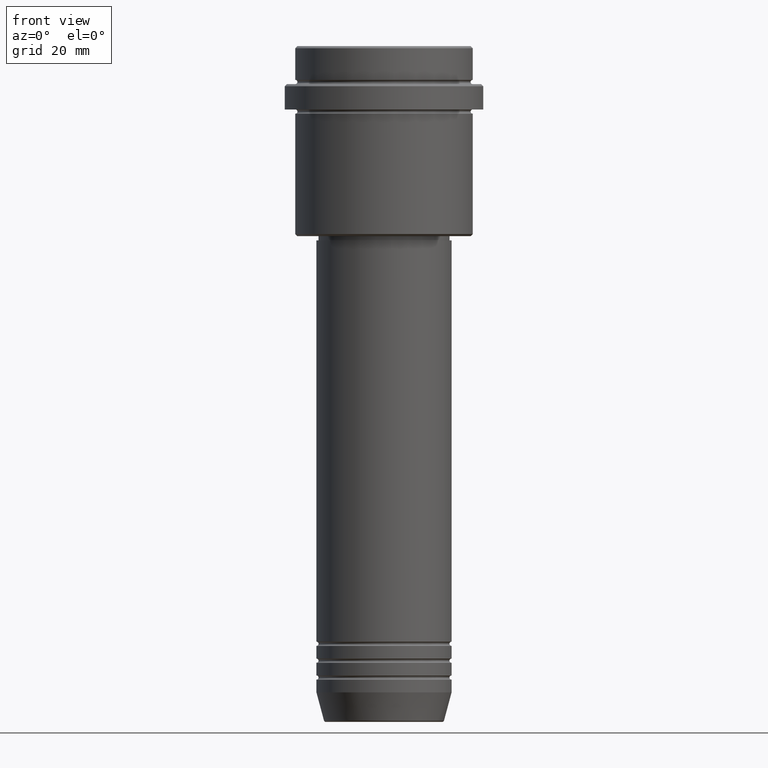
[diagram: clean part render]
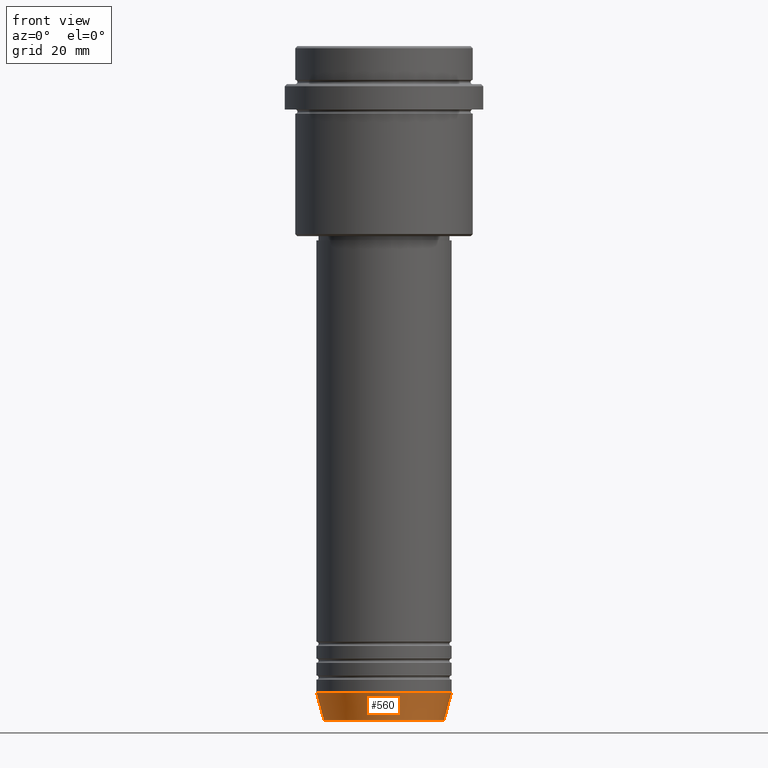
[diagram: same view with one face highlighted and labeled with its STEP entity id]
A machine part, front view. The second image highlights one B-rep face of the part: STEP entity #560.
In plain terms, the highlighted conical surface has half-angle 15 deg.
Its self-contained STEP definition (entity closure, byte-faithful):
#8 = DIRECTION ( 'NONE',  ( -0.000000000000000000, -0.000000000000000000, 1.000000000000000000 ) ) ;
#28 = DIRECTION ( 'NONE',  ( 1.000000000000000000, 0.000000000000000000, 0.000000000000000000 ) ) ;
#143 = ORIENTED_EDGE ( 'NONE', *, *, #583, .F. ) ;
#197 = EDGE_CURVE ( 'NONE', #845, #369, #841, .T. ) ;
#241 = DIRECTION ( 'NONE',  ( 1.000000000000000000, 0.000000000000000000, 0.000000000000000000 ) ) ;
#327 = DIRECTION ( 'NONE',  ( 1.000000000000000000, 0.000000000000000000, 0.000000000000000000 ) ) ;
#335 = ORIENTED_EDGE ( 'NONE', *, *, #436, .T. ) ;
#341 = FACE_OUTER_BOUND ( 'NONE', #1283, .T. ) ;
#347 = CARTESIAN_POINT ( 'NONE',  ( -16.00000000000000000, 1.959434878635765131E-15, -153.0000000000000000 ) ) ;
#351 = AXIS2_PLACEMENT_3D ( 'NONE', #744, #1188, #327 ) ;
#369 = VERTEX_POINT ( 'NONE', #828 ) ;
#380 = DIRECTION ( 'NONE',  ( -0.2588190451025213501, 3.169619151431772337E-17, 0.9659258262890680902 ) ) ;
#436 = EDGE_CURVE ( 'NONE', #1189, #845, #641, .T. ) ;
#488 = LINE ( 'NONE', #347, #522 ) ;
#495 = VECTOR ( 'NONE', #975, 1000.000000000000000 ) ;
#522 = VECTOR ( 'NONE', #380, 1000.000000000000000 ) ;
#530 = CARTESIAN_POINT ( 'NONE',  ( -14.22365507213719660, 1.850665122131324126E-15, -159.6294095225512422 ) ) ;
#549 = CARTESIAN_POINT ( 'NONE',  ( 0.000000000000000000, 0.000000000000000000, -153.0000000000000000 ) ) ;
#552 = CIRCLE ( 'NONE', #1009, 16.00000000000000000 ) ;
#560 = ADVANCED_FACE ( 'NONE', ( #341 ), #589, .T. ) ;
#583 = EDGE_CURVE ( 'NONE', #1189, #803, #488, .T. ) ;
#589 = CONICAL_SURFACE ( 'NONE', #1028, 16.00000000000000000, 0.2617993877991500740 ) ;
#641 = CIRCLE ( 'NONE', #351, 14.22365507213719660 ) ;
#648 = CARTESIAN_POINT ( 'NONE',  ( 16.00000000000000000, 0.000000000000000000, -153.0000000000000000 ) ) ;
#744 = CARTESIAN_POINT ( 'NONE',  ( 0.000000000000000000, 0.000000000000000000, -159.6294095225512422 ) ) ;
#803 = VERTEX_POINT ( 'NONE', #1217 ) ;
#828 = CARTESIAN_POINT ( 'NONE',  ( 16.00000000000000000, 0.000000000000000000, -153.0000000000000000 ) ) ;
#841 = LINE ( 'NONE', #648, #495 ) ;
#845 = VERTEX_POINT ( 'NONE', #1014 ) ;
#881 = DIRECTION ( 'NONE',  ( -0.000000000000000000, -0.000000000000000000, 1.000000000000000000 ) ) ;
#903 = ORIENTED_EDGE ( 'NONE', *, *, #197, .T. ) ;
#975 = DIRECTION ( 'NONE',  ( 0.2588190451025213501, 0.000000000000000000, 0.9659258262890680902 ) ) ;
#1009 = AXIS2_PLACEMENT_3D ( 'NONE', #1219, #8, #28 ) ;
#1014 = CARTESIAN_POINT ( 'NONE',  ( 14.22365507213719660, 0.000000000000000000, -159.6294095225512422 ) ) ;
#1028 = AXIS2_PLACEMENT_3D ( 'NONE', #549, #881, #241 ) ;
#1188 = DIRECTION ( 'NONE',  ( -0.000000000000000000, -0.000000000000000000, 1.000000000000000000 ) ) ;
#1189 = VERTEX_POINT ( 'NONE', #530 ) ;
#1217 = CARTESIAN_POINT ( 'NONE',  ( -16.00000000000000000, 1.959434878635765131E-15, -153.0000000000000000 ) ) ;
#1219 = CARTESIAN_POINT ( 'NONE',  ( 0.000000000000000000, 0.000000000000000000, -153.0000000000000000 ) ) ;
#1283 = EDGE_LOOP ( 'NONE', ( #143, #335, #903, #1351 ) ) ;
#1337 = EDGE_CURVE ( 'NONE', #803, #369, #552, .T. ) ;
#1351 = ORIENTED_EDGE ( 'NONE', *, *, #1337, .F. ) ;